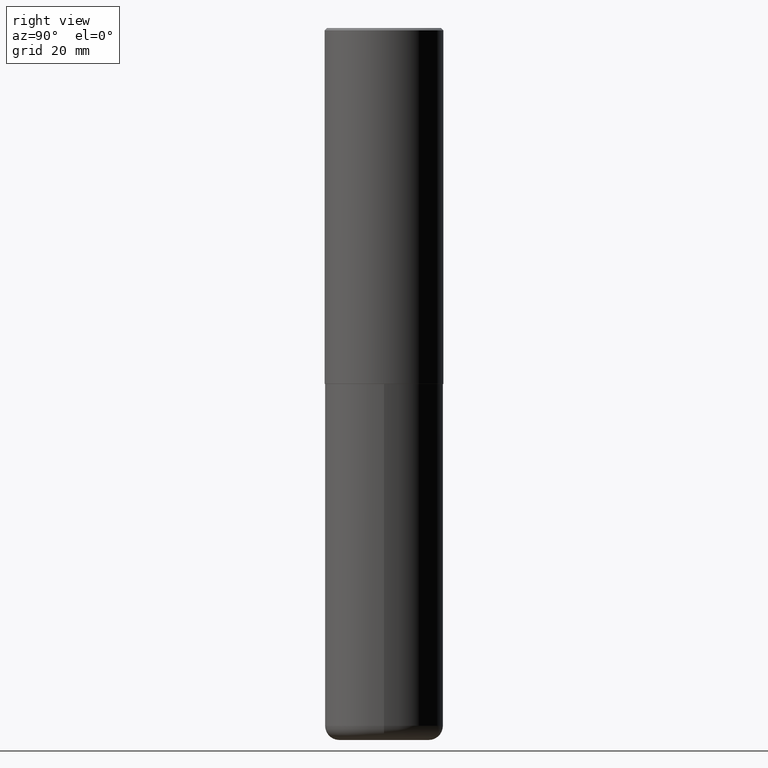
[diagram: clean part render]
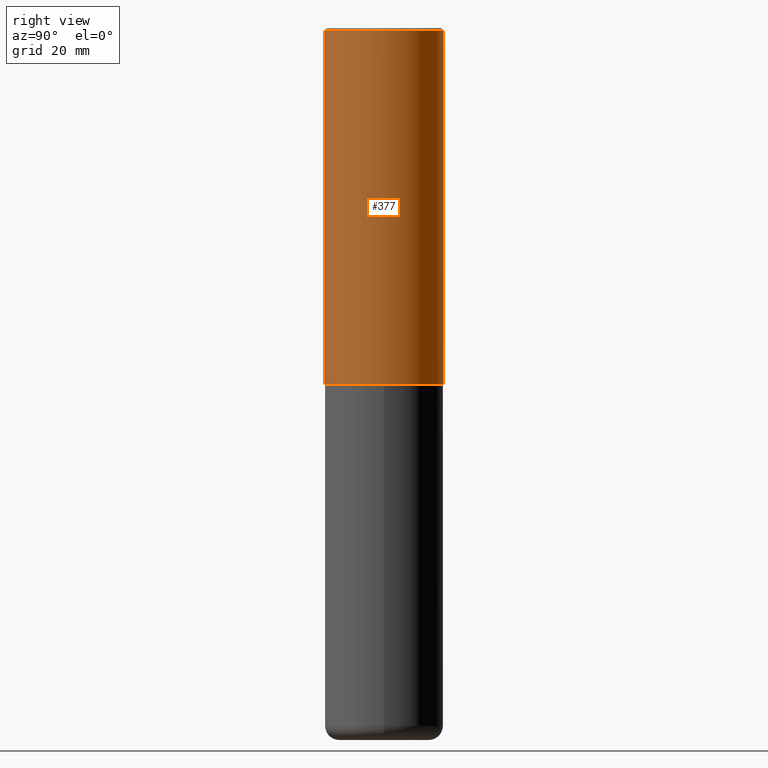
[diagram: same view with one face highlighted and labeled with its STEP entity id]
A machine part, right view. The second image highlights one B-rep face of the part: STEP entity #377.
In plain terms, the highlighted cylindrical surface (partial cylindrical patch) has radius 12.7 mm, axis along (-0, 0, 1).
Its self-contained STEP definition (entity closure, byte-faithful):
#2 = DIRECTION ( 'NONE',  ( -2.444898033699712212E-29, 3.492298717528625990E-15, 1.000000000000000000 ) ) ;
#4 = DIRECTION ( 'NONE',  ( -6.982962677686265922E-15, -1.000000000000000000, 3.491643216902136408E-15 ) ) ;
#5 = FACE_OUTER_BOUND ( 'NONE', #81, .T. ) ;
#16 = ORIENTED_EDGE ( 'NONE', *, *, #305, .T. ) ;
#27 = CIRCLE ( 'NONE', #96, 0.5000000000000002220 ) ;
#43 = DIRECTION ( 'NONE',  ( -6.982962677686265922E-15, -1.000000000000000000, 3.492298717528625990E-15 ) ) ;
#54 = LINE ( 'NONE', #409, #112 ) ;
#65 = CARTESIAN_POINT ( 'NONE',  ( 3.552713678800539584E-15, 0.4999999999999898970, -2.999000000000001886 ) ) ;
#75 = CARTESIAN_POINT ( 'NONE',  ( -3.491481338843061569E-15, -0.5000000000000107692, -2.998999999999998778 ) ) ;
#80 = CYLINDRICAL_SURFACE ( 'NONE', #292, 0.5000000000000001110 ) ;
#81 = EDGE_LOOP ( 'NONE', ( #16, #418, #246, #145 ) ) ;
#96 = AXIS2_PLACEMENT_3D ( 'NONE', #329, #2, #100 ) ;
#100 = DIRECTION ( 'NONE',  ( -6.982962677686266711E-15, -1.000000000000000000, 3.278217592397114284E-15 ) ) ;
#111 = CARTESIAN_POINT ( 'NONE',  ( -3.491481338843133750E-15, -0.5000000000000001110, 1.746149358764313390E-15 ) ) ;
#112 = VECTOR ( 'NONE', #188, 39.37007874015748143 ) ;
#123 = CARTESIAN_POINT ( 'NONE',  ( 3.491481338843133355E-15, 0.4999999999999999445, -0.02000000000000185310 ) ) ;
#128 = VERTEX_POINT ( 'NONE', #250 ) ;
#144 = CIRCLE ( 'NONE', #222, 0.5000000000000000000 ) ;
#145 = ORIENTED_EDGE ( 'NONE', *, *, #393, .F. ) ;
#169 = DIRECTION ( 'NONE',  ( -2.444898033699711931E-29, 3.492298717528626385E-15, 1.000000000000000000 ) ) ;
#170 = EDGE_CURVE ( 'NONE', #306, #269, #54, .T. ) ;
#188 = DIRECTION ( 'NONE',  ( -2.444898033699711931E-29, 3.492298717528626385E-15, 1.000000000000000000 ) ) ;
#208 = CARTESIAN_POINT ( 'NONE',  ( 0.000000000000000000, 0.000000000000000000, 0.000000000000000000 ) ) ;
#222 = AXIS2_PLACEMENT_3D ( 'NONE', #296, #384, #4 ) ;
#246 = ORIENTED_EDGE ( 'NONE', *, *, #295, .F. ) ;
#250 = CARTESIAN_POINT ( 'NONE',  ( -3.430248998885764992E-15, -0.5000000000000001110, -0.01999999999999835937 ) ) ;
#269 = VERTEX_POINT ( 'NONE', #123 ) ;
#272 = DIRECTION ( 'NONE',  ( -2.444898033699712212E-29, 3.492298717528625990E-15, 1.000000000000000000 ) ) ;
#292 = AXIS2_PLACEMENT_3D ( 'NONE', #208, #272, #43 ) ;
#295 = EDGE_CURVE ( 'NONE', #128, #269, #144, .T. ) ;
#296 = CARTESIAN_POINT ( 'NONE',  ( 4.889796067399450837E-31, -6.984597435057287381E-17, -0.02000000000000010797 ) ) ;
#305 = EDGE_CURVE ( 'NONE', #362, #306, #27, .T. ) ;
#306 = VERTEX_POINT ( 'NONE', #65 ) ;
#329 = CARTESIAN_POINT ( 'NONE',  ( 7.332249203065438921E-29, -1.047340385386834930E-14, -2.999000000000000554 ) ) ;
#331 = LINE ( 'NONE', #111, #396 ) ;
#362 = VERTEX_POINT ( 'NONE', #75 ) ;
#377 = ADVANCED_FACE ( 'NONE', ( #5 ), #80, .T. ) ;
#384 = DIRECTION ( 'NONE',  ( -2.444898033699712212E-29, 3.492298717528625990E-15, 1.000000000000000000 ) ) ;
#393 = EDGE_CURVE ( 'NONE', #362, #128, #331, .T. ) ;
#396 = VECTOR ( 'NONE', #169, 39.37007874015748143 ) ;
#409 = CARTESIAN_POINT ( 'NONE',  ( 3.552713678800501718E-15, 0.5000000000000001110, -1.746149358764313390E-15 ) ) ;
#418 = ORIENTED_EDGE ( 'NONE', *, *, #170, .T. ) ;